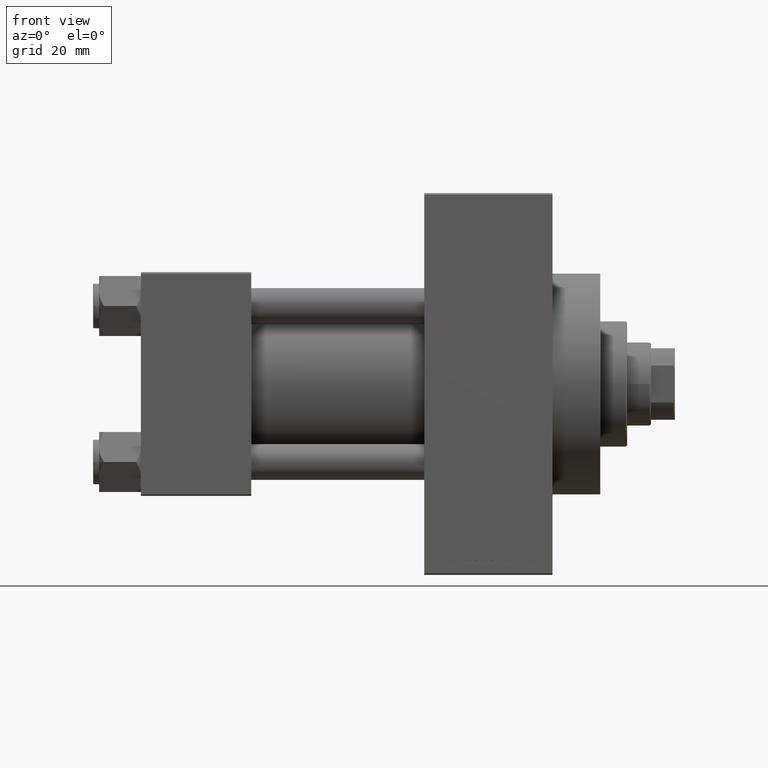
[diagram: clean part render]
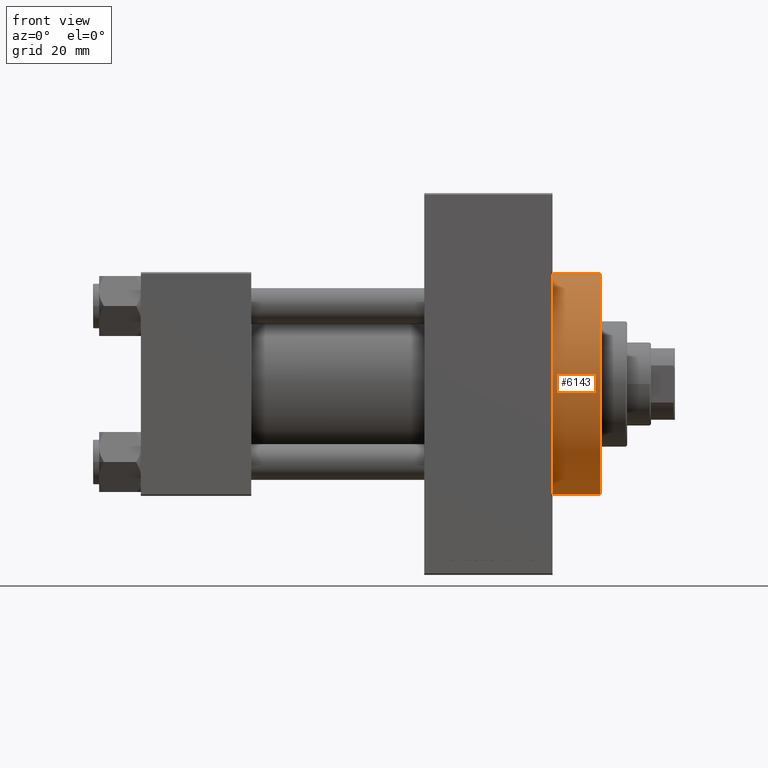
[diagram: same view with one face highlighted and labeled with its STEP entity id]
A machine part, front view. The second image highlights one B-rep face of the part: STEP entity #6143.
In plain terms, the highlighted cylindrical surface (partial cylindrical patch) has radius 37 mm, axis along (-1, -0, -0).
Its self-contained STEP definition (entity closure, byte-faithful):
#4975 = FACE_OUTER_BOUND ( 'NONE', #22010, .T. ) ;
#5214 = CYLINDRICAL_SURFACE ( 'NONE', #16858, 37.00000000000000000 ) ;
#6143 = ADVANCED_FACE ( 'NONE', ( #4975 ), #5214, .T. ) ;
#6426 = AXIS2_PLACEMENT_3D ( 'NONE', #19809, #29823, #37694 ) ;
#7200 = CIRCLE ( 'NONE', #6426, 37.00000000000000000 ) ;
#7681 = ORIENTED_EDGE ( 'NONE', *, *, #39408, .T. ) ;
#9443 = CARTESIAN_POINT ( 'NONE',  ( 154.0000000000000284, 0.000000000000000000, 37.00000000000000000 ) ) ;
#9983 = CARTESIAN_POINT ( 'NONE',  ( 138.0000000000000000, 0.000000000000000000, 0.000000000000000000 ) ) ;
#10689 = ORIENTED_EDGE ( 'NONE', *, *, #31615, .F. ) ;
#12361 = DIRECTION ( 'NONE',  ( 0.000000000000000000, 0.000000000000000000, 1.000000000000000000 ) ) ;
#12996 = CARTESIAN_POINT ( 'NONE',  ( 154.0000000000000284, 0.000000000000000000, 37.00000000000000000 ) ) ;
#16310 = DIRECTION ( 'NONE',  ( -1.000000000000000000, -0.000000000000000000, -0.000000000000000000 ) ) ;
#16858 = AXIS2_PLACEMENT_3D ( 'NONE', #40762, #37662, #12361 ) ;
#17403 = DIRECTION ( 'NONE',  ( 1.000000000000000000, 0.000000000000000000, 0.000000000000000000 ) ) ;
#18706 = ORIENTED_EDGE ( 'NONE', *, *, #38092, .F. ) ;
#19809 = CARTESIAN_POINT ( 'NONE',  ( 154.0000000000000284, 0.000000000000000000, 0.000000000000000000 ) ) ;
#20990 = VECTOR ( 'NONE', #24484, 1000.000000000000000 ) ;
#22010 = EDGE_LOOP ( 'NONE', ( #10689, #18706, #7681, #28559 ) ) ;
#22725 = VERTEX_POINT ( 'NONE', #28354 ) ;
#24484 = DIRECTION ( 'NONE',  ( -1.000000000000000000, -0.000000000000000000, -0.000000000000000000 ) ) ;
#25278 = AXIS2_PLACEMENT_3D ( 'NONE', #9983, #17403, #27911 ) ;
#26249 = VERTEX_POINT ( 'NONE', #12996 ) ;
#27017 = EDGE_CURVE ( 'NONE', #22725, #42383, #45874, .T. ) ;
#27911 = DIRECTION ( 'NONE',  ( 0.000000000000000000, 0.000000000000000000, -1.000000000000000000 ) ) ;
#28354 = CARTESIAN_POINT ( 'NONE',  ( 138.0000000000000000, 0.000000000000000000, 37.00000000000000000 ) ) ;
#28559 = ORIENTED_EDGE ( 'NONE', *, *, #27017, .T. ) ;
#29698 = VERTEX_POINT ( 'NONE', #36536 ) ;
#29823 = DIRECTION ( 'NONE',  ( 1.000000000000000000, 0.000000000000000000, 0.000000000000000000 ) ) ;
#31615 = EDGE_CURVE ( 'NONE', #29698, #42383, #37550, .T. ) ;
#33970 = CARTESIAN_POINT ( 'NONE',  ( 154.0000000000000284, 4.531193156845206793E-15, -37.00000000000000000 ) ) ;
#36536 = CARTESIAN_POINT ( 'NONE',  ( 154.0000000000000284, 4.531193156845206793E-15, -37.00000000000000000 ) ) ;
#37550 = LINE ( 'NONE', #33970, #44469 ) ;
#37662 = DIRECTION ( 'NONE',  ( -1.000000000000000000, -0.000000000000000000, -0.000000000000000000 ) ) ;
#37694 = DIRECTION ( 'NONE',  ( 0.000000000000000000, 0.000000000000000000, -1.000000000000000000 ) ) ;
#38092 = EDGE_CURVE ( 'NONE', #26249, #29698, #7200, .T. ) ;
#39408 = EDGE_CURVE ( 'NONE', #26249, #22725, #42405, .T. ) ;
#39631 = CARTESIAN_POINT ( 'NONE',  ( 138.0000000000000000, 4.531193156845206793E-15, -37.00000000000000000 ) ) ;
#40762 = CARTESIAN_POINT ( 'NONE',  ( 154.0000000000000284, 0.000000000000000000, 0.000000000000000000 ) ) ;
#42383 = VERTEX_POINT ( 'NONE', #39631 ) ;
#42405 = LINE ( 'NONE', #9443, #20990 ) ;
#44469 = VECTOR ( 'NONE', #16310, 1000.000000000000000 ) ;
#45874 = CIRCLE ( 'NONE', #25278, 37.00000000000000000 ) ;